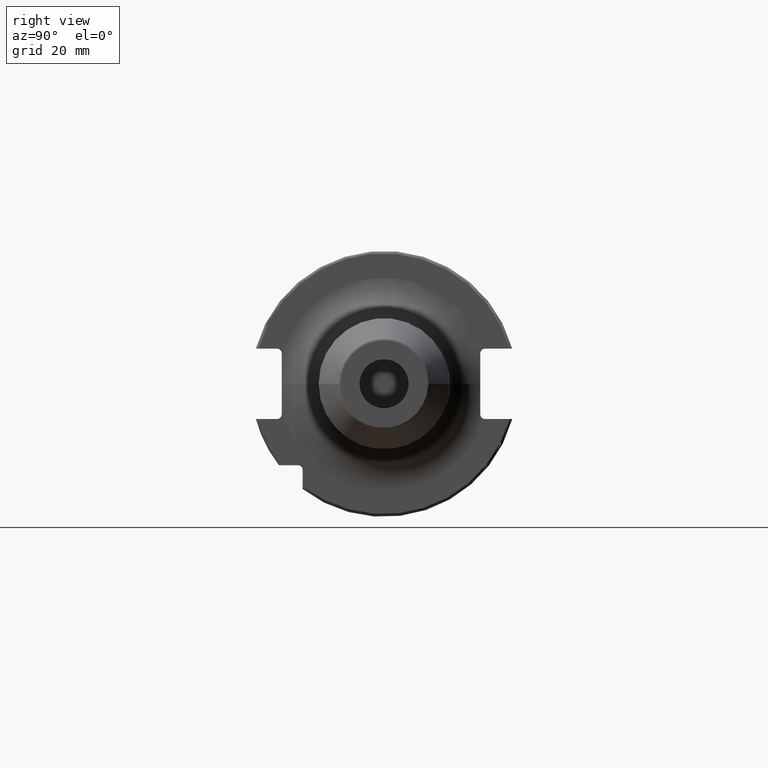
[diagram: clean part render]
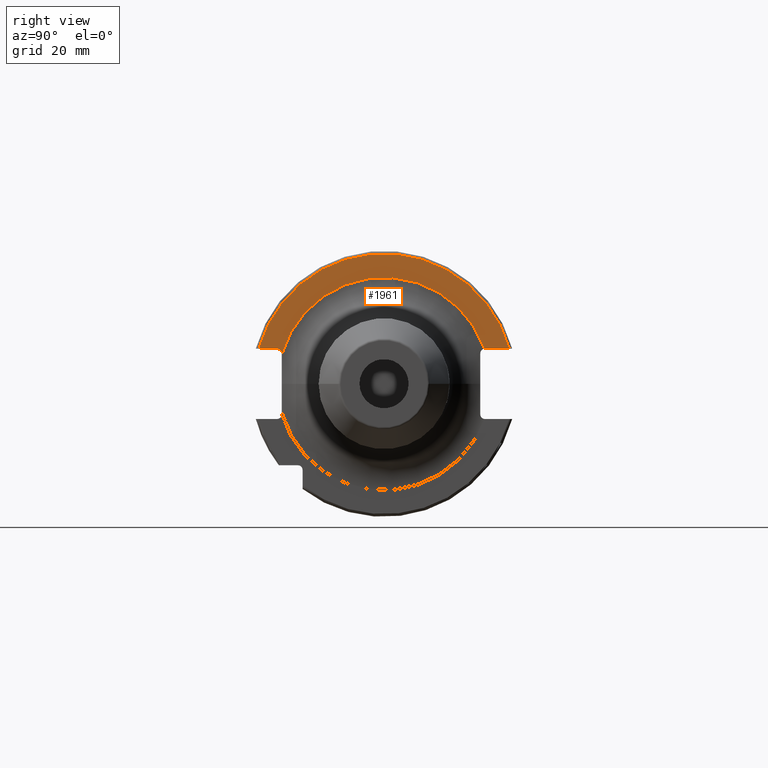
[diagram: same view with one face highlighted and labeled with its STEP entity id]
A machine part, right view. The second image highlights one B-rep face of the part: STEP entity #1961.
In plain terms, the highlighted planar face has unit normal (1, 0, 0).
Its self-contained STEP definition (entity closure, byte-faithful):
#161=CARTESIAN_POINT('',(1.905E1,0.E0,0.E0));
#162=DIRECTION('',(1.E0,0.E0,0.E0));
#163=DIRECTION('',(0.E0,9.438595341718E-1,3.303470595494E-1));
#164=AXIS2_PLACEMENT_3D('',#161,#162,#163);
#166=DIRECTION('',(0.E0,-1.568474297109E-5,9.999999998770E-1));
#167=VECTOR('',#166,4.377269174E-1);
#168=CARTESIAN_POINT('',(1.905E1,-3.749999313437E1,1.071227308265E1));
#169=LINE('',#168,#167);
#170=DIRECTION('',(0.E0,1.E0,0.E0));
#171=VECTOR('',#170,6.711493733886E0);
#172=CARTESIAN_POINT('',(1.905E1,-4.596149373389E1,1.29E1));
#173=LINE('',#172,#171);
#174=DIRECTION('',(0.E0,-1.E0,0.E0));
#175=VECTOR('',#174,8.911493733886E0);
#176=CARTESIAN_POINT('',(1.905E1,4.596149373389E1,1.29E1));
#177=LINE('',#176,#175);
#252=CARTESIAN_POINT('',(1.905E1,3.705E1,1.115E1));
#253=DIRECTION('',(-1.E0,0.E0,0.E0));
#254=DIRECTION('',(0.E0,-1.368410549184E-1,9.905930171815E-1));
#255=AXIS2_PLACEMENT_3D('',#252,#253,#254);
#266=CARTESIAN_POINT('',(1.905E1,4.596149373389E1,1.29E1));
#277=CARTESIAN_POINT('',(1.905E1,0.E0,0.E0));
#278=DIRECTION('',(1.E0,0.E0,0.E0));
#279=DIRECTION('',(0.E0,9.627964123359E-1,2.702278083268E-1));
#280=AXIS2_PLACEMENT_3D('',#277,#278,#279);
#291=CARTESIAN_POINT('',(1.905E1,-4.596149373389E1,1.29E1));
#297=CARTESIAN_POINT('',(1.905E1,-3.925E1,1.115E1));
#298=DIRECTION('',(-1.E0,0.E0,0.E0));
#299=DIRECTION('',(0.E0,0.E0,1.E0));
#300=AXIS2_PLACEMENT_3D('',#297,#298,#299);
#1589=VERTEX_POINT('',#266);
#1590=VERTEX_POINT('',#291);
#1629=CARTESIAN_POINT('',(1.905E1,-3.925E1,1.29E1));
#1631=VERTEX_POINT('',#1629);
#1633=CARTESIAN_POINT('',(1.905E1,-3.75E1,1.115E1));
#1635=VERTEX_POINT('',#1633);
#1637=CARTESIAN_POINT('',(1.905E1,3.705E1,1.29E1));
#1639=VERTEX_POINT('',#1637);
#1681=CARTESIAN_POINT('',(1.905E1,3.681052183270E1,1.288353532243E1));
#1682=CARTESIAN_POINT('',(1.905E1,-3.749991569209E1,1.071243777514E1));
#1683=VERTEX_POINT('',#1681);
#1684=VERTEX_POINT('',#1682);
#1940=CARTESIAN_POINT('',(1.905E1,0.E0,0.E0));
#1941=DIRECTION('',(1.E0,0.E0,0.E0));
#1942=DIRECTION('',(0.E0,-1.E0,0.E0));
#1943=AXIS2_PLACEMENT_3D('',#1940,#1941,#1942);
#1944=PLANE('',#1943);
#1946=ORIENTED_EDGE('',*,*,#1945,.T.);
#1948=ORIENTED_EDGE('',*,*,#1947,.T.);
#1950=ORIENTED_EDGE('',*,*,#1949,.F.);
#1952=ORIENTED_EDGE('',*,*,#1951,.F.);
#1954=ORIENTED_EDGE('',*,*,#1953,.F.);
#1956=ORIENTED_EDGE('',*,*,#1955,.T.);
#1958=ORIENTED_EDGE('',*,*,#1957,.F.);
#1959=EDGE_LOOP('',(#1946,#1948,#1950,#1952,#1954,#1956,#1958));
#1960=FACE_OUTER_BOUND('',#1959,.F.);
#1961=ADVANCED_FACE('',(#1960),#1944,.T.);
#165=CIRCLE('',#164,3.9E1);
#256=CIRCLE('',#255,1.75E0);
#281=CIRCLE('',#280,4.77375E1);
#301=CIRCLE('',#300,1.75E0);
#1945=EDGE_CURVE('',#1683,#1684,#165,.T.);
#1947=EDGE_CURVE('',#1684,#1635,#169,.T.);
#1949=EDGE_CURVE('',#1631,#1635,#301,.T.);
#1951=EDGE_CURVE('',#1590,#1631,#173,.T.);
#1953=EDGE_CURVE('',#1589,#1590,#281,.T.);
#1955=EDGE_CURVE('',#1589,#1639,#177,.T.);
#1957=EDGE_CURVE('',#1683,#1639,#256,.T.);